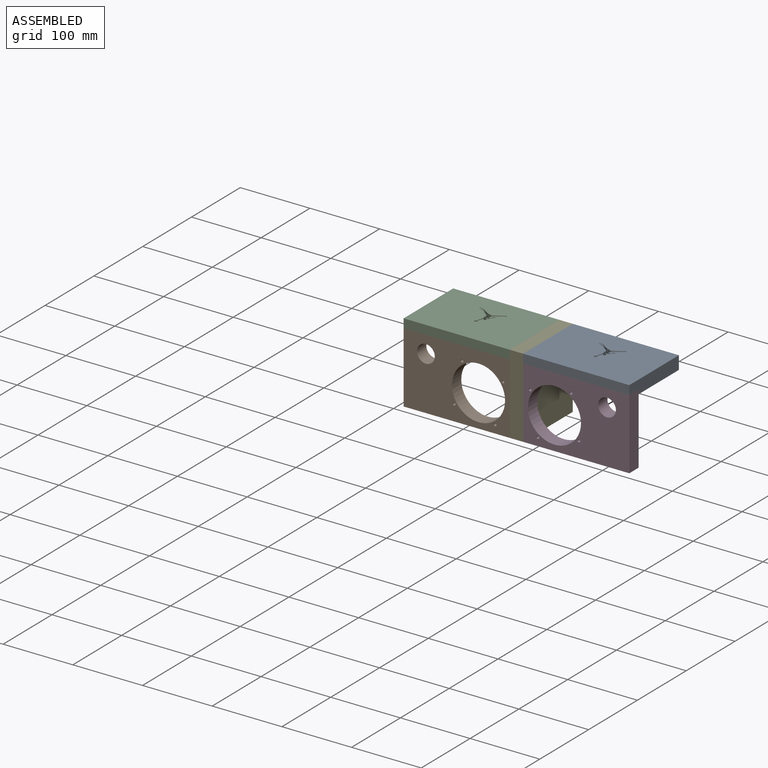
[diagram: assembled view]
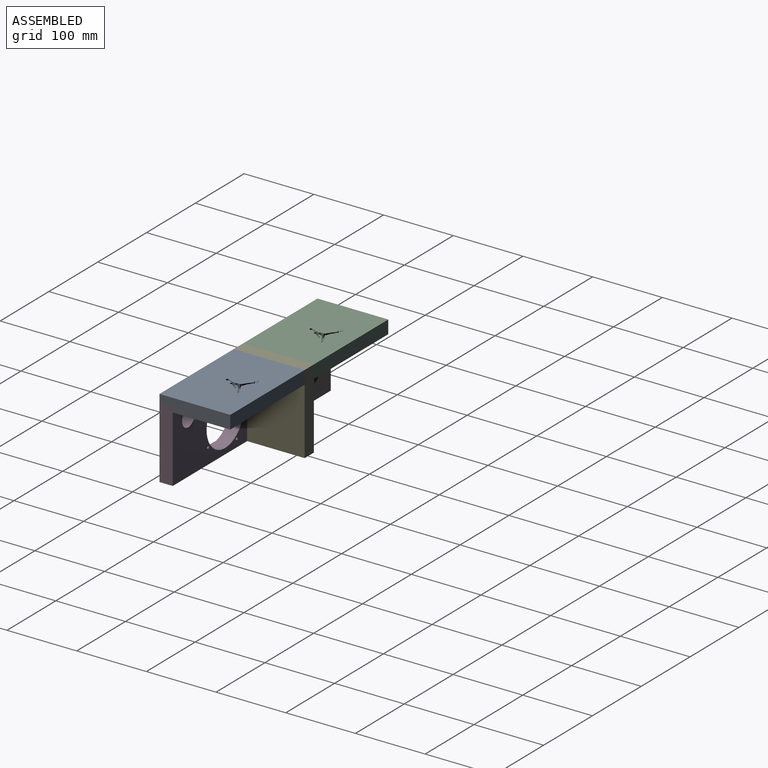
[diagram: assembled view, second angle]
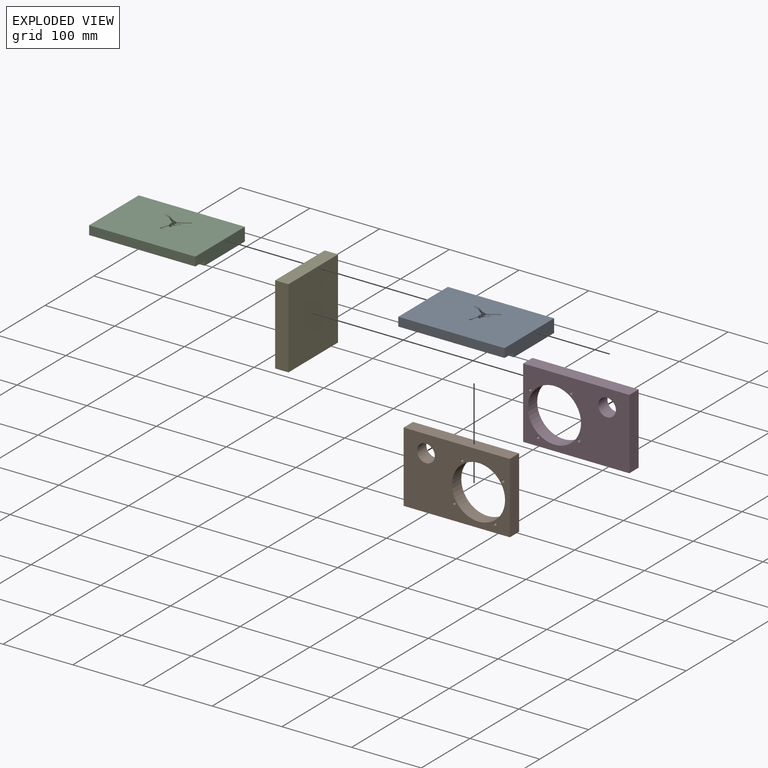
[diagram: exploded view]
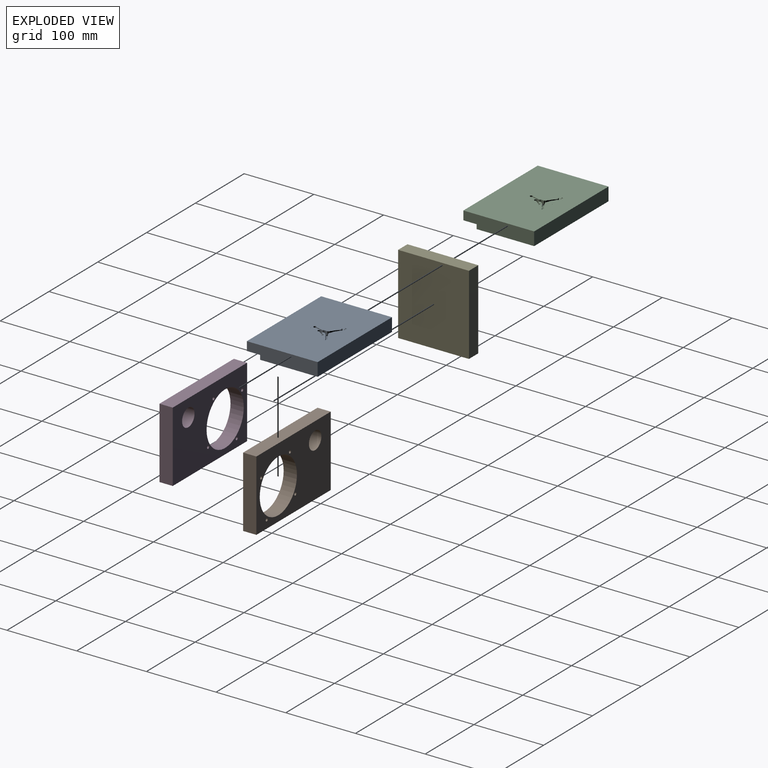
[diagram: exploded view, second angle]
ASSEMBLY  parts=5 mates=4
PART A: 258 faces, bbox 152.4x101.6x19.1 mm
  f0: plane 152.4x101.6mm, normal (0,0,1), area 15260mm2, adj f1,f2,f3,f4,f8,f9,f10,f11
  f1: plane 101.6x19.05mm, normal (1,0,0), area 1814.5mm2, adj f0,f3,f4,f5,f6,f7
  f2: plane 101.6x19.05mm, normal (-1,0,0), area 1814.5mm2, adj f0,f3,f4,f5,f6,f7
  f3: plane 152.4x12.7mm, normal (0,-1,0), area 1935.5mm2, adj f0,f1,f2,f7
  f4: plane 152.4x19.05mm, normal (0,1,0), area 2903.2mm2, adj f0,f1,f2,f5
  f5: plane 152.4x82.55mm, normal (0,0,-1), area 12580.6mm2, adj f1,f2,f4,f6
  f6: plane 152.4x6.35mm, normal (0,-1,0), area 967.7mm2, adj f1,f2,f5,f7
  f7: plane 152.4x19.05mm, normal (0,0,-1), area 2903.2mm2, adj f1,f2,f3,f6
  f8: plane 6.35x0.4mm, normal (0,1,0), area 2.5mm2, adj f0,f9,f19,f20
  f9: plane 6.35x0.45mm, normal (0.95,-0.32,0), area 3mm2, adj f0,f8,f10,f20
  f10: plane 6.35x0.34mm, normal (0,-1,0), area 2.1mm2, adj f0,f9,f11,f20
  f11: plane 6.35x0.39mm, normal (0.95,-0.32,0), area 2.6mm2, adj f0,f10,f12,f20
  f12: plane 6.35x0.34mm, normal (0,1,0), area 2.1mm2, adj f0,f11,f13,f20
  f13: plane 6.35x0.39mm, normal (0.95,-0.32,0), area 2.6mm2, adj f0,f12,f14,f20
  f14: plane 6.35x0.36mm, normal (0,-1,0), area 2.3mm2, adj f0,f13,f15,f20
  f15: plane 6.35x0.41mm, normal (0.95,-0.32,0), area 2.8mm2, adj f0,f14,f16,f20
  f16: plane 6.35x0.89mm, normal (0,1,0), area 5.7mm2, adj f0,f15,f17,f20
  f17: plane 6.35x2.06mm, normal (-0.95,0.32,0), area 13.8mm2, adj f0,f16,f18,f20
  f18: plane 6.35x0.93mm, normal (0,-1,0), area 5.9mm2, adj f0,f17,f19,f20
  f19: plane 6.35x0.41mm, normal (0.95,-0.32,0), area 2.8mm2, adj f0,f8,f18,f20
  f20: plane 2.06x1.59mm, normal (0,0,1), area 1.5mm2, adj f8,f9,f10,f11,f12,f13,f14,f15
  f21: cylinder r=0.1mm len=6.35mm, axis (0,0,1), area 3.9mm2, adj f0,f22
  f22: plane 0.19x0.19mm, normal (0,0,1), area 0mm2, adj f21
  f23: cylinder r=0.1mm len=6.35mm, axis (0,0,1), area 3.9mm2, adj f0,f24
  f24: plane 0.19x0.19mm, normal (0,0,1), area 0mm2, adj f23
  f25: cylinder r=0.19mm len=6.35mm, axis (0,0,1), area 2.6mm2, adj f0,f26,f221,f222
  f26: cylinder r=2mm len=6.35mm, axis (0,0,1), area 64.3mm2, adj f0,f25,f27,f222
  f27: cylinder r=3.03mm len=6.35mm, axis (0,0,1), area 9.4mm2, adj f0,f26,f28,f222
  f28: cylinder r=2.22mm len=6.35mm, axis (0,0,1), area 4.2mm2, adj f0,f27,f29,f222
  f29: plane 6.35x1.78mm, normal (-0.97,0.24,0), area 11.6mm2, adj f0,f28,f30,f222
  f30: cylinder r=0.2mm len=6.35mm, axis (0,0,1), area 1.7mm2, adj f0,f29,f31,f222
  f31: plane 6.35x1.35mm, normal (-0.96,0.29,0), area 8.9mm2, adj f0,f30,f32,f222
  f32: cylinder r=0.12mm len=6.35mm, axis (0,0,1), area 0.8mm2, adj f0,f31,f33,f222
  f33: cylinder r=4.96mm len=6.35mm, axis (0,0,1), area 5mm2, adj f0,f32,f34,f222
  f34: cylinder r=1.88mm len=6.35mm, axis (0,0,1), area 4.5mm2, adj f0,f33,f35,f222
  f35: cylinder r=7.35mm len=6.35mm, axis (0,0,1), area 11.4mm2, adj f0,f34,f36,f222
  f36: cylinder r=1.53mm len=6.35mm, axis (0,0,1), area 0.8mm2, adj f0,f35,f37,f222
  f37: cylinder r=1.45mm len=6.35mm, axis (0,0,1), area 6.3mm2, adj f0,f36,f38,f222
  f38: cylinder r=0.52mm len=6.35mm, axis (0,0,1), area 2.7mm2, adj f0,f37,f39,f222
  f39: cylinder r=0.52mm len=6.35mm, axis (0,0,1), area 1.8mm2, adj f0,f38,f40,f222
  f40: cylinder r=0.19mm len=6.35mm, axis (0,0,1), area 1mm2, adj f0,f39,f41,f222
  f41: cylinder r=1.58mm len=6.35mm, axis (0,0,1), area 2.5mm2, adj f0,f40,f42,f222
  f42: cylinder r=0.34mm len=6.35mm, axis (0,0,1), area 1.9mm2, adj f0,f41,f43,f222
  f43: cylinder r=3.61mm len=6.35mm, axis (0,0,1), area 3.8mm2, adj f0,f42,f44,f222
  f44: cylinder r=1.43mm len=6.35mm, axis (0,0,1), area 7.7mm2, adj f0,f43,f45,f222
  f45: cylinder r=2.09mm len=6.35mm, axis (0,0,1), area 11.9mm2, adj f0,f44,f46,f222
  f46: cylinder r=1.6mm len=6.35mm, axis (0,0,1), area 5.4mm2, adj f0,f45,f47,f222
  f47: cylinder r=1.77mm len=6.35mm, axis (0,0,1), area 8.3mm2, adj f0,f46,f48,f222
  f48: cylinder r=1.02mm len=6.35mm, axis (0,0,1), area 2.7mm2, adj f0,f47,f49,f222
  f49: cylinder r=1.2mm len=6.35mm, axis (0,0,1), area 4.8mm2, adj f0,f48,f50,f222
  f50: cylinder r=0.8mm len=6.35mm, axis (0,0,1), area 3.3mm2, adj f0,f49,f51,f222
  f51: cylinder r=1.7mm len=6.35mm, axis (0,0,1), area 3.8mm2, adj f0,f50,f52,f222
  f52: cylinder r=7.73mm len=6.35mm, axis (0,0,1), area 10.6mm2, adj f0,f51,f53,f222
  f53: cylinder r=2.95mm len=6.35mm, axis (0,0,1), area 9.4mm2, adj f0,f52,f54,f222
  f54: cylinder r=9.86mm len=6.35mm, axis (0,0,1), area 24.3mm2, adj f0,f53,f55,f222
  f55: cylinder r=3.61mm len=6.35mm, axis (0,0,1), area 6.6mm2, adj f0,f54,f56,f222
  f56: cylinder r=1.66mm len=6.35mm, axis (0,0,1), area 2mm2, adj f0,f55,f57,f222
  f57: cylinder r=2.52mm len=6.35mm, axis (0,0,1), area 5.9mm2, adj f0,f56,f58,f222
  f58: cylinder r=7.31mm len=6.35mm, axis (0,0,1), area 7.7mm2, adj f0,f57,f59,f222
  f59: cylinder r=0.14mm len=6.35mm, axis (0,0,1), area 1mm2, adj f0,f58,f60,f222
  f60: cylinder r=0.14mm len=6.35mm, axis (0,0,1), area 1.3mm2, adj f0,f59,f61,f222
  f61: cylinder r=3.91mm len=6.35mm, axis (0,0,1), area 9.3mm2, adj f0,f60,f62,f222
  f62: cylinder r=0.05mm len=6.35mm, axis (0,0,1), area 0.7mm2, adj f0,f61,f63,f222
  f63: cylinder r=1.2mm len=6.35mm, axis (0,0,1), area 2.9mm2, adj f0,f62,f64,f222
  f64: cylinder r=0.47mm len=6.35mm, axis (0,0,1), area 1.9mm2, adj f0,f63,f65,f222
  f65: cylinder r=0.11mm len=6.35mm, axis (0,0,1), area 1.3mm2, adj f0,f64,f66,f222
  f66: cylinder r=0.96mm len=6.35mm, axis (0,0,1), area 2.3mm2, adj f0,f65,f67,f222
  f67: cylinder r=0.99mm len=6.35mm, axis (0,0,1), area 2.9mm2, adj f0,f66,f68,f222
  f68: cylinder r=1.02mm len=6.35mm, axis (0,0,1), area 2.5mm2, adj f0,f67,f69,f222
  f69: cylinder r=0.05mm len=6.35mm, axis (0,0,1), area 0.8mm2, adj f0,f68,f70,f222
  f70: cylinder r=1.1mm len=6.35mm, axis (0,0,1), area 1.8mm2, adj f0,f69,f71,f222
  f71: cylinder r=0.14mm len=6.35mm, axis (0,0,1), area 1.7mm2, adj f0,f70,f72,f222
  f72: cylinder r=0.32mm len=6.35mm, axis (0,0,1), area 1.3mm2, adj f0,f71,f73,f222
  f73: cylinder r=1.21mm len=6.35mm, axis (0,0,1), area 1.9mm2, adj f0,f72,f74,f222
  f74: plane 6.35x0.43mm, normal (0.77,-0.64,0), area 3.6mm2, adj f0,f73,f75,f222
  f75: cylinder r=0.13mm len=6.35mm, axis (0,0,1), area 1.2mm2, adj f0,f74,f76,f222
  f76: cylinder r=0.98mm len=6.35mm, axis (0,0,1), area 3.7mm2, adj f0,f75,f77,f222
  f77: cylinder r=0.55mm len=6.35mm, axis (0,0,1), area 3.5mm2, adj f0,f76,f78,f222
  f78: cylinder r=0.21mm len=6.35mm, axis (0,0,1), area 1.8mm2, adj f0,f77,f79,f222
  f79: cylinder r=0.58mm len=6.35mm, axis (0,0,1), area 1.7mm2, adj f0,f78,f80,f222
  f80: cylinder r=0.39mm len=6.35mm, axis (0,0,1), area 1.9mm2, adj f0,f79,f81,f222
  f81: cylinder r=0.19mm len=6.35mm, axis (0,0,1), area 1mm2, adj f0,f80,f82,f222
  f82: cylinder r=0.53mm len=6.35mm, axis (0,0,1), area 1.6mm2, adj f0,f81,f83,f222
  f83: cylinder r=0.89mm len=6.35mm, axis (0,0,1), area 1.3mm2, adj f0,f82,f84,f222
  f84: cylinder r=2.13mm len=6.35mm, axis (0,0,1), area 12.5mm2, adj f0,f83,f85,f222
  f85: cylinder r=4.71mm len=6.35mm, axis (0,0,1), area 20.6mm2, adj f0,f84,f86,f222
  f86: cylinder r=0.58mm len=6.35mm, axis (0,0,1), area 5.3mm2, adj f0,f85,f87,f222
  f87: cylinder r=0.46mm len=6.35mm, axis (0,0,1), area 1.9mm2, adj f0,f86,f88,f222
  f88: cylinder r=4.05mm len=6.35mm, axis (0,0,1), area 6.4mm2, adj f0,f87,f89,f222
  f89: cylinder r=0.63mm len=6.35mm, axis (0,0,1), area 5.3mm2, adj f0,f88,f90,f222
  f90: cylinder r=5.89mm len=6.35mm, axis (0,0,1), area 7mm2, adj f0,f89,f91,f222
  f91: cylinder r=2.28mm len=6.35mm, axis (0,0,1), area 4mm2, adj f0,f90,f92,f222
  f92: cylinder r=0.54mm len=6.35mm, axis (0,0,1), area 3.5mm2, adj f0,f91,f93,f222
  f93: cylinder r=1.24mm len=6.35mm, axis (0,0,1), area 3.9mm2, adj f0,f92,f94,f222
  f94: cylinder r=2.32mm len=6.35mm, axis (0,0,1), area 3.6mm2, adj f0,f93,f95,f222
  f95: cylinder r=1.11mm len=6.35mm, axis (0,0,1), area 4.7mm2, adj f0,f94,f96,f222
  f96: cylinder r=0.69mm len=6.35mm, axis (0,0,1), area 2.8mm2, adj f0,f95,f97,f222
  f97: cylinder r=0.88mm len=6.35mm, axis (0,0,1), area 5.7mm2, adj f0,f96,f98,f222
  f98: cylinder r=8.72mm len=6.35mm, axis (0,0,1), area 22.8mm2, adj f0,f97,f99,f222
  f99: cylinder r=1.59mm len=6.35mm, axis (0,0,1), area 9.3mm2, adj f0,f98,f100,f222
  f100: cylinder r=12.51mm len=6.35mm, axis (0,0,1), area 34.9mm2, adj f0,f99,f101,f222
  f101: cylinder r=3.2mm len=6.35mm, axis (0,0,1), area 6.8mm2, adj f0,f100,f102,f222
  f102: cylinder r=0.1mm len=6.35mm, axis (0,0,1), area 1.3mm2, adj f0,f101,f103,f222
  f103: cylinder r=0.05mm len=6.35mm, axis (0,0,1), area 0.8mm2, adj f0,f102,f104,f222
  f104: cylinder r=0.41mm len=6.35mm, axis (0,0,1), area 1.8mm2, adj f0,f103,f105,f222
  f105: cylinder r=0.43mm len=6.35mm, axis (0,0,1), area 1.2mm2, adj f0,f104,f106,f222
  f106: cylinder r=0.25mm len=6.35mm, axis (0,0,1), area 1.6mm2, adj f0,f105,f107,f222
  f107: cylinder r=0.32mm len=6.35mm, axis (0,0,1), area 1.8mm2, adj f0,f106,f108,f222
  f108: cylinder r=0.65mm len=6.35mm, axis (0,0,1), area 1.4mm2, adj f0,f107,f109,f222
  f109: cylinder r=0.15mm len=6.35mm, axis (0,0,1), area 1.4mm2, adj f0,f108,f110,f222
  f110: cylinder r=0.18mm len=6.35mm, axis (0,0,1), area 1.2mm2, adj f0,f109,f111,f222
  f111: cylinder r=1.26mm len=6.35mm, axis (0,0,1), area 2.8mm2, adj f0,f110,f112,f222
  f112: cylinder r=0.18mm len=6.35mm, axis (0,0,1), area 1.2mm2, adj f0,f111,f113,f222
  f113: cylinder r=0.18mm len=6.35mm, axis (0,0,1), area 1.2mm2, adj f0,f112,f114,f222
  f114: cylinder r=0.47mm len=6.35mm, axis (0,0,1), area 2mm2, adj f0,f113,f115,f222
  f115: cylinder r=0.45mm len=6.35mm, axis (0,0,1), area 1.4mm2, adj f0,f114,f116,f222
  f116: cylinder r=0.61mm len=6.35mm, axis (0,0,1), area 2.4mm2, adj f0,f115,f117,f222
  f117: cylinder r=0.06mm len=6.35mm, axis (0,0,1), area 1.2mm2, adj f0,f116,f118,f222
  f118: cylinder r=0.22mm len=6.35mm, axis (0,0,1), area 1.2mm2, adj f0,f117,f119,f222
  f119: cylinder r=0.35mm len=6.35mm, axis (0,0,1), area 1.9mm2, adj f0,f118,f120,f222
  f120: cylinder r=0.69mm len=6.35mm, axis (0,0,1), area 1.4mm2, adj f0,f119,f121,f222
  f121: cylinder r=1.38mm len=6.35mm, axis (0,0,1), area 2.8mm2, adj f0,f120,f122,f222
  f122: plane 6.35x0.21mm, normal (0,1,0), area 1.3mm2, adj f0,f121,f123,f222
  f123: cylinder r=2.07mm len=6.35mm, axis (0,0,1), area 4.7mm2, adj f0,f122,f124,f222
  f124: plane 6.35x0.29mm, normal (-0.02,1,0), area 1.8mm2, adj f0,f123,f125,f222
  f125: cylinder r=1.84mm len=6.35mm, axis (0,0,1), area 4.5mm2, adj f0,f124,f126,f222
  f126: cylinder r=1.64mm len=6.35mm, axis (0,0,1), area 4.4mm2, adj f0,f125,f127,f222
  f127: cylinder r=0.45mm len=6.35mm, axis (0,0,1), area 2.1mm2, adj f0,f126,f128,f222
  f128: cylinder r=2.92mm len=6.35mm, axis (0,0,1), area 5mm2, adj f0,f127,f129,f222
  f129: cylinder r=1.72mm len=6.35mm, axis (0,0,1), area 4.5mm2, adj f0,f128,f130,f222
  f130: cylinder r=1.4mm len=6.35mm, axis (0,0,1), area 4.4mm2, adj f0,f129,f131,f222
  f131: cylinder r=1.32mm len=6.35mm, axis (0,0,1), area 2.3mm2, adj f0,f130,f132,f222
  f132: cylinder r=1.02mm len=6.35mm, axis (0,0,1), area 5.9mm2, adj f0,f131,f133,f222
  f133: cylinder r=1.61mm len=6.35mm, axis (0,0,1), area 1.3mm2, adj f0,f132,f134,f222
  f134: cylinder r=0.56mm len=6.35mm, axis (0,0,1), area 1.9mm2, adj f0,f133,f135,f222
  f135: cylinder r=1.23mm len=6.35mm, axis (0,0,1), area 2.4mm2, adj f0,f134,f136,f222
  f136: cylinder r=0.34mm len=6.35mm, axis (0,0,1), area 1.6mm2, adj f0,f135,f137,f222
  f137: cylinder r=0.13mm len=6.35mm, axis (0,0,1), area 1.5mm2, adj f0,f136,f138,f222
  f138: cylinder r=0.65mm len=6.35mm, axis (0,0,1), area 2.3mm2, adj f0,f137,f139,f222
  f139: cylinder r=0.31mm len=6.35mm, axis (0,0,1), area 1mm2, adj f0,f138,f140,f222
  f140: cylinder r=0.51mm len=6.35mm, axis (0,0,1), area 2.8mm2, adj f0,f139,f141,f222
  f141: cylinder r=1.49mm len=6.35mm, axis (0,0,1), area 3.3mm2, adj f0,f140,f142,f222
  f142: cylinder r=0.22mm len=6.35mm, axis (0,0,1), area 1.1mm2, adj f0,f141,f143,f222
  f143: cylinder r=0.52mm len=6.35mm, axis (0,0,1), area 2.4mm2, adj f0,f142,f144,f222
  f144: cylinder r=0.44mm len=6.35mm, axis (0,0,1), area 1.8mm2, adj f0,f143,f145,f222
  f145: cylinder r=0.5mm len=6.35mm, axis (0,0,1), area 1.7mm2, adj f0,f144,f146,f222
  f146: cylinder r=2.15mm len=6.35mm, axis (0,0,1), area 3mm2, adj f0,f145,f147,f222
  f147: cylinder r=0.1mm len=6.35mm, axis (0,0,1), area 0.8mm2, adj f0,f146,f148,f222
  f148: cylinder r=0.64mm len=6.35mm, axis (0,0,1), area 0.8mm2, adj f0,f147,f149,f222
  f149: cylinder r=0.22mm len=6.35mm, axis (0,0,1), area 1.4mm2, adj f0,f148,f150,f222
  f150: cylinder r=13.2mm len=6.35mm, axis (0,0,1), area 16.7mm2, adj f0,f149,f151,f222
  f151: cylinder r=29.97mm len=6.35mm, axis (0,0,1), area 26.2mm2, adj f0,f150,f152,f222
  f152: cylinder r=20.07mm len=6.35mm, axis (0,0,1), area 22.3mm2, adj f0,f151,f153,f222
  f153: cylinder r=12.24mm len=6.35mm, axis (0,0,1), area 13.5mm2, adj f0,f152,f154,f222
  f154: cylinder r=0.49mm len=6.35mm, axis (0,0,1), area 2.7mm2, adj f0,f153,f155,f222
  f155: cylinder r=7.55mm len=6.35mm, axis (0,0,1), area 12.1mm2, adj f0,f154,f156,f222
  f156: cylinder r=13.22mm len=6.35mm, axis (0,0,1), area 9.1mm2, adj f0,f155,f157,f222
  f157: cylinder r=3.11mm len=6.35mm, axis (0,0,1), area 4mm2, adj f0,f156,f158,f222
  f158: cylinder r=5.94mm len=6.35mm, axis (0,0,1), area 13.1mm2, adj f0,f157,f159,f222
  f159: cylinder r=11.31mm len=6.35mm, axis (0,0,1), area 7.6mm2, adj f0,f158,f160,f222
  f160: cylinder r=2.9mm len=6.35mm, axis (0,0,1), area 5.4mm2, adj f0,f159,f161,f222
  f161: cylinder r=4.57mm len=6.35mm, axis (0,0,1), area 5.9mm2, adj f0,f160,f162,f222
  f162: cylinder r=16.17mm len=6.35mm, axis (0,0,1), area 14.4mm2, adj f0,f161,f163,f222
  f163: cylinder r=1.32mm len=6.35mm, axis (0,0,1), area 4.2mm2, adj f0,f162,f164,f222
  f164: cylinder r=13.55mm len=6.35mm, axis (0,0,1), area 11.9mm2, adj f0,f163,f165,f222
  f165: cylinder r=1.07mm len=6.35mm, axis (0,0,1), area 3.4mm2, adj f0,f164,f166,f222
  f166: cylinder r=1.44mm len=6.35mm, axis (0,0,1), area 3.3mm2, adj f0,f165,f167,f222
  f167: cylinder r=2.14mm len=6.35mm, axis (0,0,1), area 5.8mm2, adj f0,f166,f168,f222
  f168: cylinder r=2.38mm len=6.35mm, axis (0,0,1), area 6.7mm2, adj f0,f167,f169,f222
  f169: cylinder r=0.36mm len=6.35mm, axis (0,0,1), area 0.9mm2, adj f0,f168,f170,f222
  f170: cylinder r=2.91mm len=6.35mm, axis (0,0,1), area 6.1mm2, adj f0,f169,f171,f222
  f171: cylinder r=0.25mm len=6.35mm, axis (0,0,1), area 1.9mm2, adj f0,f170,f172,f222
  f172: cylinder r=2.14mm len=6.35mm, axis (0,0,1), area 5.6mm2, adj f0,f171,f173,f222
  f173: cylinder r=3.01mm len=6.35mm, axis (0,0,1), area 6.8mm2, adj f0,f172,f174,f222
  f174: cylinder r=4.89mm len=6.35mm, axis (0,0,1), area 8.3mm2, adj f0,f173,f175,f222
  f175: cylinder r=10.29mm len=6.35mm, axis (0,0,1), area 11.3mm2, adj f0,f174,f176,f222
  f176: cylinder r=0.26mm len=6.35mm, axis (0,0,1), area 1.5mm2, adj f0,f175,f177,f222
  f177: cylinder r=0.56mm len=6.35mm, axis (0,0,1), area 2.9mm2, adj f0,f176,f178,f222
  f178: cylinder r=0.82mm len=6.35mm, axis (0,0,1), area 2.7mm2, adj f0,f177,f179,f222
  f179: cylinder r=1.94mm len=6.35mm, axis (0,0,1), area 4.1mm2, adj f0,f178,f180,f222
  f180: cylinder r=0.96mm len=6.35mm, axis (0,0,1), area 2.2mm2, adj f0,f179,f181,f222
  f181: plane 6.35x1.89mm, normal (0.03,1,0), area 12mm2, adj f0,f180,f182,f222
  f182: cylinder r=2.03mm len=6.35mm, axis (0,0,1), area 6.8mm2, adj f0,f181,f183,f222
  f183: cylinder r=1.08mm len=6.35mm, axis (0,0,1), area 2.1mm2, adj f0,f182,f184,f222
  f184: cylinder r=0.09mm len=6.35mm, axis (0,0,1), area 1.4mm2, adj f0,f183,f185,f222
  f185: cylinder r=1.01mm len=6.35mm, axis (0,0,1), area 1mm2, adj f0,f184,f186,f222
  f186: cylinder r=1.04mm len=6.35mm, axis (0,0,1), area 5.7mm2, adj f0,f185,f187,f222
  f187: cylinder r=0.4mm len=6.35mm, axis (0,0,1), area 1.3mm2, adj f0,f186,f188,f222
  f188: cylinder r=0.58mm len=6.35mm, axis (0,0,1), area 1.6mm2, adj f0,f187,f189,f222
  f189: cylinder r=0.29mm len=6.35mm, axis (0,0,1), area 2.1mm2, adj f0,f188,f190,f222
  f190: cylinder r=1.55mm len=6.35mm, axis (0,0,1), area 2.2mm2, adj f0,f189,f191,f222
  f191: cylinder r=0.43mm len=6.35mm, axis (0,0,1), area 1.8mm2, adj f0,f190,f192,f222
  f192: cylinder r=0.29mm len=6.35mm, axis (0,0,1), area 2.1mm2, adj f0,f191,f193,f222
  f193: cylinder r=2.37mm len=6.35mm, axis (0,0,1), area 1.1mm2, adj f0,f192,f194,f222
  f194: cylinder r=0.15mm len=6.35mm, axis (0,0,1), area 1.8mm2, adj f0,f193,f195,f222
  f195: cylinder r=1.89mm len=6.35mm, axis (0,0,1), area 0.8mm2, adj f0,f194,f196,f222
  f196: cylinder r=2.65mm len=6.35mm, axis (0,0,1), area 5.5mm2, adj f0,f195,f197,f222
  f197: cylinder r=34.63mm len=6.35mm, axis (0,0,1), area 39mm2, adj f0,f196,f198,f222
  f198: cylinder r=1.63mm len=6.35mm, axis (0,0,1), area 5.2mm2, adj f0,f197,f199,f222
  f199: cylinder r=9.19mm len=6.35mm, axis (0,0,1), area 29.1mm2, adj f0,f198,f200,f222
  f200: cylinder r=2.99mm len=6.35mm, axis (0,0,1), area 1.8mm2, adj f0,f199,f201,f222
  f201: cylinder r=0.63mm len=6.35mm, axis (0,0,1), area 3.6mm2, adj f0,f200,f202,f222
  f202: cylinder r=2.29mm len=6.35mm, axis (0,0,1), area 6.4mm2, adj f0,f201,f203,f222
  f203: cylinder r=3.27mm len=6.35mm, axis (0,0,1), area 4.9mm2, adj f0,f202,f204,f222
  f204: cylinder r=10.41mm len=6.35mm, axis (0,0,1), area 17mm2, adj f0,f203,f205,f222
  f205: cylinder r=11.85mm len=6.35mm, axis (0,0,1), area 8.6mm2, adj f0,f204,f206,f222
  f206: cylinder r=1.52mm len=6.35mm, axis (0,0,1), area 4.7mm2, adj f0,f205,f207,f222
  f207: cylinder r=2.49mm len=6.35mm, axis (0,0,1), area 4.7mm2, adj f0,f206,f208,f222
  f208: cylinder r=4.82mm len=6.35mm, axis (0,0,1), area 6mm2, adj f0,f207,f209,f222
  f209: cylinder r=3.99mm len=6.35mm, axis (0,0,1), area 4.1mm2, adj f0,f208,f210,f222
  f210: cylinder r=0.74mm len=6.35mm, axis (0,0,1), area 1.8mm2, adj f0,f209,f211,f222
  f211: cylinder r=4.85mm len=6.35mm, axis (0,0,1), area 5.7mm2, adj f0,f210,f212,f222
  f212: cylinder r=2.31mm len=6.35mm, axis (0,0,1), area 4.5mm2, adj f0,f211,f213,f222
  f213: cylinder r=5.33mm len=6.35mm, axis (0,0,1), area 4.2mm2, adj f0,f212,f214,f222
  f214: cylinder r=2.11mm len=6.35mm, axis (0,0,1), area 7mm2, adj f0,f213,f215,f222
  f215: cylinder r=7.57mm len=6.35mm, axis (0,0,1), area 11.9mm2, adj f0,f214,f216,f222
  f216: cylinder r=0.87mm len=6.35mm, axis (0,0,1), area 4.5mm2, adj f0,f215,f217,f222
  f217: cylinder r=4.19mm len=6.35mm, axis (0,0,1), area 6.7mm2, adj f0,f216,f218,f222
  f218: cylinder r=0.33mm len=6.35mm, axis (0,0,1), area 1.4mm2, adj f0,f217,f219,f222
  f219: plane 6.35x1.04mm, normal (0.99,-0.1,0), area 6.6mm2, adj f0,f218,f220,f222
  f220: cylinder r=4.8mm len=6.35mm, axis (0,0,1), area 6.1mm2, adj f0,f219,f221,f222
  f221: cylinder r=0.5mm len=6.35mm, axis (0,0,1), area 2.9mm2, adj f0,f25,f220,f222
  f222: plane 36.99x34.61mm, normal (0,0,1), area 217.8mm2, adj f25,f26,f27,f28,f29,f30,f31,f32
  f223: plane 6.35x0.8mm, normal (-0.84,0.54,0), area 6.1mm2, adj f0,f224,f233,f234
  f224: plane 6.35x0.8mm, normal (0.95,-0.32,0), area 5.4mm2, adj f0,f223,f225,f234
  f225: plane 6.35x0.53mm, normal (0,1,0), area 3.4mm2, adj f0,f224,f226,f234
  f226: plane 6.35x2.06mm, normal (-0.95,0.32,0), area 13.8mm2, adj f0,f225,f227,f234
  f227: plane 6.35x0.53mm, normal (0,-1,0), area 3.4mm2, adj f0,f226,f228,f234
  f228: plane 6.35x0.88mm, normal (0.95,-0.32,0), area 5.9mm2, adj f0,f227,f229,f234
  f229: plane 6.35x0.88mm, normal (-1,0.08,0), area 5.6mm2, adj f0,f228,f230,f234
  f230: plane 6.35x0.55mm, normal (0,-1,0), area 3.5mm2, adj f0,f229,f231,f234
  f231: plane 6.35x1.13mm, normal (1,-0.04,0), area 7.2mm2, adj f0,f230,f232,f234
  f232: plane 6.35x0.93mm, normal (0.83,-0.56,0), area 7.1mm2, adj f0,f231,f233,f234
  f233: plane 6.35x0.5mm, normal (0,1,0), area 3.2mm2, adj f0,f223,f232,f234
  f234: plane 2.06x1.98mm, normal (0,0,1), area 2.1mm2, adj f223,f224,f225,f226,f227,f228,f229,f230
  f235: plane 6.35x0.93mm, normal (-0.95,0.32,0), area 6.2mm2, adj f0,f236,f244,f245
  f236: plane 6.35x0.93mm, normal (1,-0.01,0), area 5.9mm2, adj f0,f235,f237,f245
  f237: plane 6.35x0.45mm, normal (0,1,0), area 2.8mm2, adj f0,f236,f238,f245
  f238: plane 6.35x2.06mm, normal (-0.95,0.32,0), area 13.8mm2, adj f0,f237,f239,f245
  f239: plane 6.35x0.45mm, normal (0,-1,0), area 2.8mm2, adj f0,f238,f240,f245
  f240: plane 6.35x0.94mm, normal (0.95,-0.32,0), area 6.3mm2, adj f0,f239,f241,f245
  f241: plane 6.35x0.94mm, normal (-1,0.04,0), area 5.9mm2, adj f0,f240,f242,f245
  f242: plane 6.35x0.47mm, normal (0,-1,0), area 3mm2, adj f0,f241,f243,f245
  f243: plane 6.35x2.06mm, normal (0.95,-0.32,0), area 13.8mm2, adj f0,f242,f244,f245
  f244: plane 6.35x0.45mm, normal (0,1,0), area 2.8mm2, adj f0,f235,f243,f245
  f245: plane 2.06x1.9mm, normal (0,0,1), area 2.2mm2, adj f235,f236,f237,f238,f239,f240,f241,f242
  f246: cylinder r=0.1mm len=6.35mm, axis (0,0,1), area 3.9mm2, adj f0,f247
  f247: plane 0.19x0.19mm, normal (0,0,1), area 0mm2, adj f246
  f248: cylinder r=0.1mm len=6.35mm, axis (0,0,1), area 3.9mm2, adj f0,f249
  f249: plane 0.19x0.19mm, normal (0,0,1), area 0mm2, adj f248
  f250: cylinder r=0.1mm len=6.35mm, axis (0,0,1), area 3.9mm2, adj f0,f251
  f251: plane 0.19x0.19mm, normal (0,0,1), area 0mm2, adj f250
  f252: cylinder r=0.1mm len=6.35mm, axis (0,0,1), area 3.9mm2, adj f0,f253
  f253: plane 0.19x0.19mm, normal (0,0,1), area 0mm2, adj f252
  f254: cylinder r=0.1mm len=6.35mm, axis (0,0,1), area 3.9mm2, adj f0,f255
  f255: plane 0.19x0.19mm, normal (0,0,1), area 0mm2, adj f254
  f256: cylinder r=0.1mm len=6.35mm, axis (0,0,1), area 3.9mm2, adj f0,f257
  f257: plane 0.19x0.19mm, normal (0,0,1), area 0mm2, adj f256
PART B: 12 faces, bbox 152.4x19.1x101.6 mm
  f0: plane 101.6x19.05mm, normal (-1,0,0), area 1935.5mm2, adj f1,f4,f5,f6
  f1: plane 152.4x19.05mm, normal (0,0,-1), area 2903.2mm2, adj f0,f2,f5,f6
  f2: plane 101.6x19.05mm, normal (1,0,0), area 1935.5mm2, adj f1,f4,f5,f6
  f3: cylinder r=38.1mm len=76.2mm, axis (0,1,0), area 4560.4mm2, adj f5,f6
  f4: plane 152.4x19.05mm, normal (0,0,1), area 2903.2mm2, adj f0,f2,f5,f6
  f5: plane 152.4x101.6mm, normal (0,-1,0), area 10360.5mm2, adj f0,f1,f2,f3,f4,f7,f8,f9
  f6: plane 152.4x101.6mm, normal (0,1,0), area 10360.5mm2, adj f0,f1,f2,f3,f4,f7,f8,f9
  f7: cylinder r=12.74mm len=25.49mm, axis (0,-1,0), area 1525.2mm2, adj f5,f6
  f8: cylinder r=2.05mm len=19.05mm, axis (0,-1,0), area 245.4mm2, adj f5,f6
  f9: cylinder r=2.05mm len=19.05mm, axis (0,-1,0), area 245.4mm2, adj f5,f6
  f10: cylinder r=2.05mm len=19.05mm, axis (0,-1,0), area 245.4mm2, adj f5,f6
  f11: cylinder r=2.05mm len=19.05mm, axis (0,-1,0), area 245.4mm2, adj f5,f6
PART C: same geometry as A
PART D: same geometry as B
PART E: 6 faces, bbox 19.1x101.6x114.3 mm
  f0: plane 114.3x19.05mm, normal (0,-1,0), area 2177.4mm2, adj f1,f3,f4,f5
  f1: plane 101.6x19.05mm, normal (0,0,-1), area 1935.5mm2, adj f0,f2,f4,f5
  f2: plane 114.3x19.05mm, normal (0,1,0), area 2177.4mm2, adj f1,f3,f4,f5
  f3: plane 101.6x19.05mm, normal (0,0,1), area 1935.5mm2, adj f0,f2,f4,f5
  f4: plane 114.3x101.6mm, normal (1,0,0), area 11612.9mm2, adj f0,f1,f2,f3
  f5: plane 114.3x101.6mm, normal (-1,0,0), area 11612.9mm2, adj f0,f1,f2,f3
PLACE A rot(axis=(1,0,0),0deg) t=(221.38,133.57,-7.54)mm
PLACE B t=(45.46,94.65,-40.27)mm
PLACE C t=(49.93,133.57,-7.54)mm
PLACE D rot(axis=(0,0,1),180deg) t=(221.66,75.6,-40.27)mm
PLACE E t=(124.04,155.4,-70.42)mm
MATE fastened A.f2 <-> E.f4  axis (-1,0,0) through (143.09,75.6,11.51)mm
MATE fastened C.f1 <-> E.f5  axis (1,0,0) through (124.04,75.6,11.51)mm
MATE fastened A.f7 <-> D.f4  axis (0,0,1) through (143.09,75.6,-1.19)mm
MATE fastened B.f4 <-> C.f7  axis (0,0,1) through (124.04,75.6,-1.19)mm
